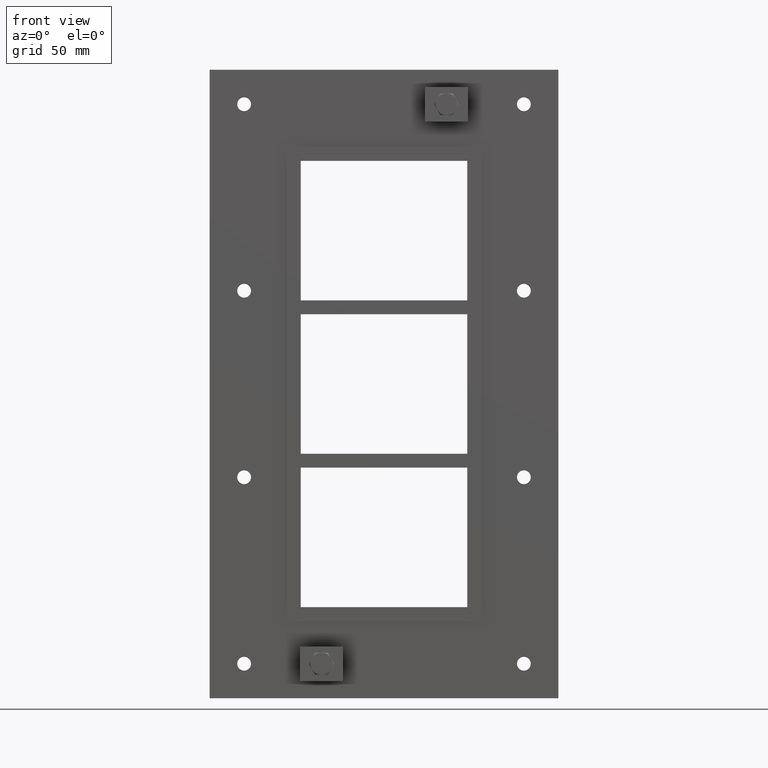
[diagram: clean part render]
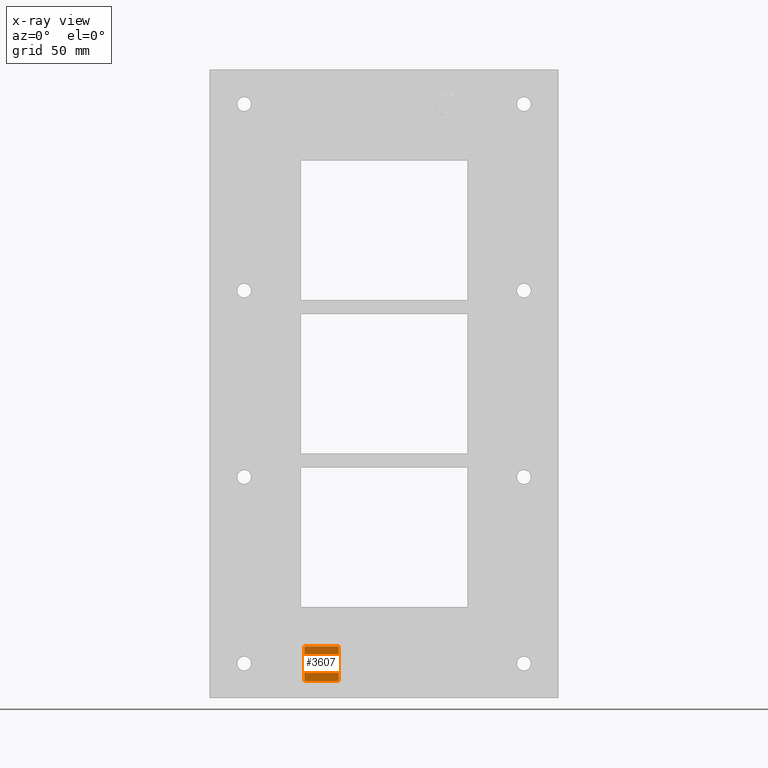
[diagram: x-ray — body ghosted, one internal face saturated and labeled with its STEP entity id]
A machine part, front view, then the same camera in x-ray: the body is ghosted and one INTERNAL B-rep face — a face not visible from any outside direction — is saturated and labeled: STEP entity #3607.
In plain terms, the highlighted planar face has unit normal (0, 1, 0).
Its self-contained STEP definition (entity closure, byte-faithful):
#3462=CARTESIAN_POINT('',(-57.74999999999995,0.0,-215.0));
#3463=VERTEX_POINT('',#3462);
#3464=CARTESIAN_POINT('',(-57.74999999999995,0.0,-189.99999999999997));
#3465=VERTEX_POINT('',#3464);
#3466=CARTESIAN_POINT('',(-57.74999999999995,0.0,-215.0));
#3467=DIRECTION('',(0.0,0.0,1.0));
#3468=VECTOR('',#3467,25.000000000000028);
#3469=LINE('',#3466,#3468);
#3470=EDGE_CURVE('',#3463,#3465,#3469,.T.);
#3502=CARTESIAN_POINT('',(-32.750000000000021,0.0,-189.99999999999997));
#3503=VERTEX_POINT('',#3502);
#3504=CARTESIAN_POINT('',(-57.74999999999995,0.0,-189.99999999999997));
#3505=DIRECTION('',(1.0,0.0,0.0));
#3506=VECTOR('',#3505,24.999999999999929);
#3507=LINE('',#3504,#3506);
#3508=EDGE_CURVE('',#3465,#3503,#3507,.T.);
#3533=CARTESIAN_POINT('',(-32.750000000000021,0.0,-215.0));
#3534=VERTEX_POINT('',#3533);
#3535=CARTESIAN_POINT('',(-32.750000000000021,0.0,-189.99999999999997));
#3536=DIRECTION('',(0.0,0.0,-1.0));
#3537=VECTOR('',#3536,25.000000000000028);
#3538=LINE('',#3535,#3537);
#3539=EDGE_CURVE('',#3503,#3534,#3538,.T.);
#3564=CARTESIAN_POINT('',(-32.750000000000021,0.0,-215.0));
#3565=DIRECTION('',(-1.0,0.0,0.0));
#3566=VECTOR('',#3565,24.999999999999929);
#3567=LINE('',#3564,#3566);
#3568=EDGE_CURVE('',#3534,#3463,#3567,.T.);
#3596=CARTESIAN_POINT('',(-45.249999999999993,0.0,-202.50000000000003));
#3597=DIRECTION('',(0.0,1.0,0.0));
#3598=DIRECTION('',(0.0,0.0,1.0));
#3599=AXIS2_PLACEMENT_3D('',#3596,#3597,#3598);
#3600=PLANE('',#3599);
#3601=ORIENTED_EDGE('',*,*,#3568,.T.);
#3602=ORIENTED_EDGE('',*,*,#3470,.T.);
#3603=ORIENTED_EDGE('',*,*,#3508,.T.);
#3604=ORIENTED_EDGE('',*,*,#3539,.T.);
#3605=EDGE_LOOP('',(#3601,#3602,#3603,#3604));
#3606=FACE_OUTER_BOUND('',#3605,.T.);
#3607=ADVANCED_FACE('',(#3606),#3600,.T.);